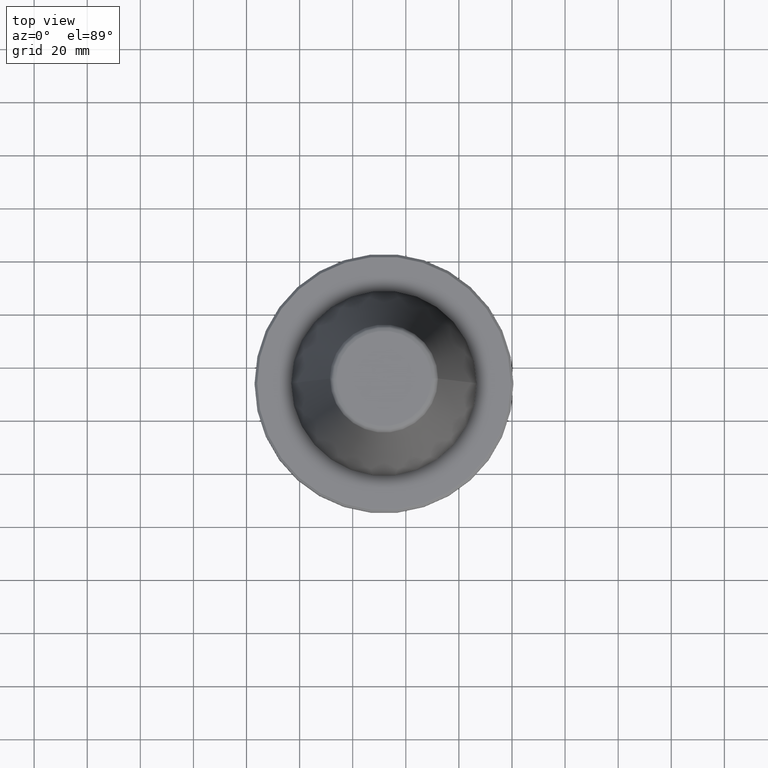
[diagram: clean part render]
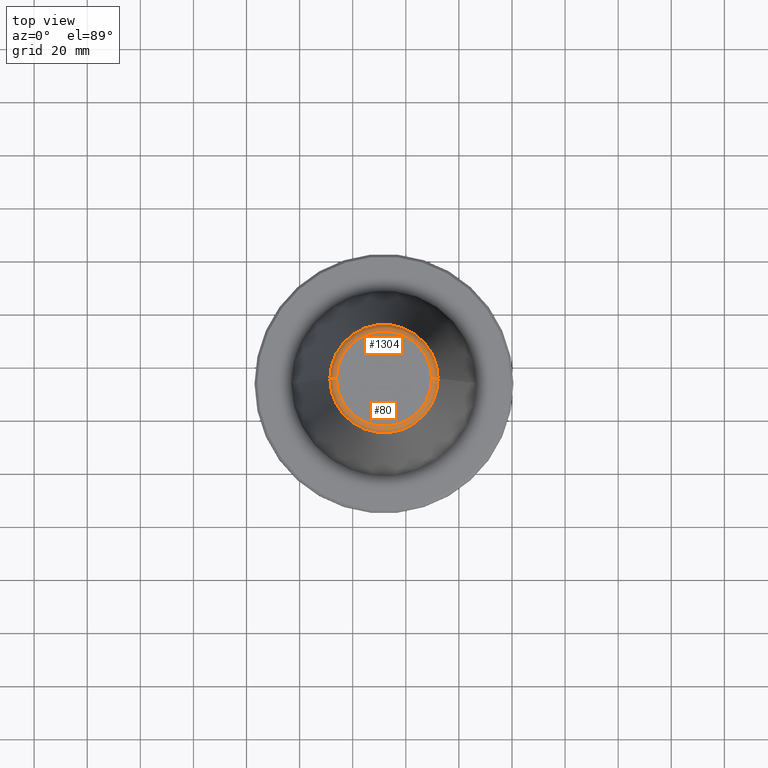
[diagram: same view with one multi-face feature highlighted, each face labeled with its STEP entity id]
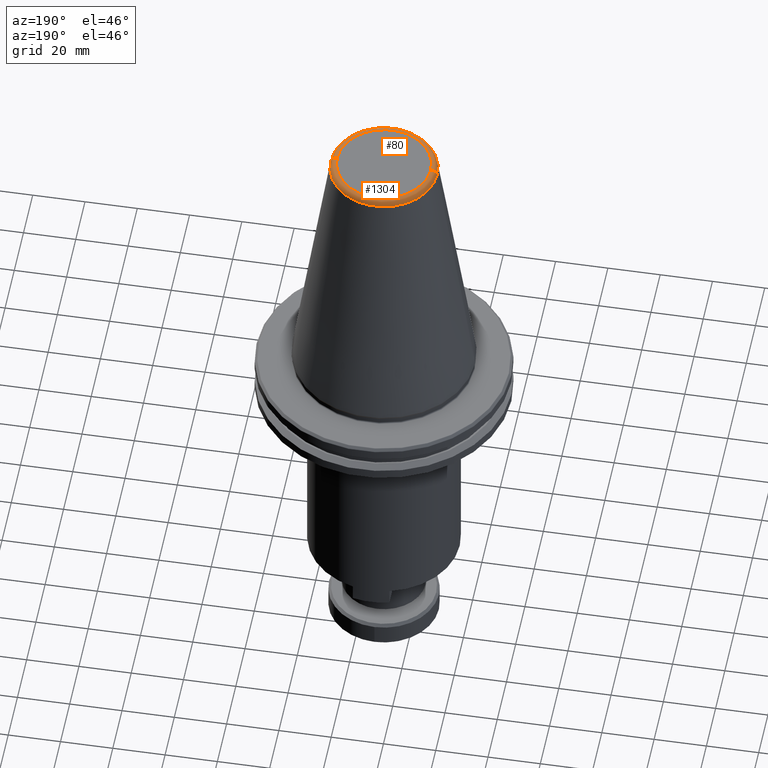
[diagram: same view with one multi-face feature highlighted, each face labeled with its STEP entity id]
A machine part, top view. The highlighted faces form ONE feature: a constant-radius fillet chain: 2 tangent blend faces with common blend radius 2.5 mm. The faces share edges in the B-rep.
A second angle (auxiliary view) of the same feature is appended — it is thin or edge-on in the first view.
Their STEP definitions:
[1] entity #80 (Torus):
#74 = CARTESIAN_POINT ( 'NONE',  ( 91.78900745422477300, 111.8872747687010000, 197.6102733462803900 ) ) ;
#80 = ADVANCED_FACE ( 'NONE', ( #599 ), #625, .T. ) ;
#137 = CIRCLE ( 'NONE', #677, 2.500000001019159000 ) ;
#186 = VERTEX_POINT ( 'NONE', #206 ) ;
#206 = CARTESIAN_POINT ( 'NONE',  ( 71.39071532422478600, 111.8872747687010000, 197.6102733462803900 ) ) ;
#231 = DIRECTION ( 'NONE',  ( 1.000000000000000000, 0.0000000000000000000, 0.0000000000000000000 ) ) ;
#266 = AXIS2_PLACEMENT_3D ( 'NONE', #399, #705, #2025 ) ;
#308 = AXIS2_PLACEMENT_3D ( 'NONE', #535, #1935, #1507 ) ;
#329 = CIRCLE ( 'NONE', #308, 2.500000001019159000 ) ;
#334 = CIRCLE ( 'NONE', #592, 20.39829212999999400 ) ;
#339 = EDGE_CURVE ( 'NONE', #2079, #817, #426, .T. ) ;
#363 = CARTESIAN_POINT ( 'NONE',  ( 73.86443870282634800, 111.8872747687010000, 199.7495027765116900 ) ) ;
#399 = CARTESIAN_POINT ( 'NONE',  ( 91.78900745422477300, 111.8872747687010000, 197.2495027778508100 ) ) ;
#407 = CARTESIAN_POINT ( 'NONE',  ( 112.1872995842247700, 111.8872747687010000, 197.6102733462803900 ) ) ;
#426 = CIRCLE ( 'NONE', #931, 17.92456875139843200 ) ;
#482 = EDGE_CURVE ( 'NONE', #186, #2079, #329, .T. ) ;
#491 = EDGE_CURVE ( 'NONE', #186, #1187, #334, .T. ) ;
#535 = CARTESIAN_POINT ( 'NONE',  ( 73.86454729085123500, 111.8872747687010000, 197.2495027778508100 ) ) ;
#557 = DIRECTION ( 'NONE',  ( -0.0000000000000000000, -0.0000000000000000000, 1.000000000000000000 ) ) ;
#592 = AXIS2_PLACEMENT_3D ( 'NONE', #74, #557, #231 ) ;
#599 = FACE_OUTER_BOUND ( 'NONE', #1417, .T. ) ;
#625 = TOROIDAL_SURFACE ( 'NONE', #266, 17.92446016337354600, 2.500000001019154500 ) ;
#677 = AXIS2_PLACEMENT_3D ( 'NONE', #1234, #1784, #2129 ) ;
#705 = DIRECTION ( 'NONE',  ( -0.0000000000000000000, -0.0000000000000000000, 1.000000000000000000 ) ) ;
#766 = EDGE_CURVE ( 'NONE', #1187, #817, #137, .T. ) ;
#817 = VERTEX_POINT ( 'NONE', #1941 ) ;
#931 = AXIS2_PLACEMENT_3D ( 'NONE', #1835, #1895, #1770 ) ;
#1135 = ORIENTED_EDGE ( 'NONE', *, *, #339, .F. ) ;
#1187 = VERTEX_POINT ( 'NONE', #407 ) ;
#1234 = CARTESIAN_POINT ( 'NONE',  ( 109.7134676175983100, 111.8872747687010000, 197.2495027778508100 ) ) ;
#1358 = ORIENTED_EDGE ( 'NONE', *, *, #491, .T. ) ;
#1417 = EDGE_LOOP ( 'NONE', ( #1438, #1358, #1926, #1135 ) ) ;
#1438 = ORIENTED_EDGE ( 'NONE', *, *, #482, .F. ) ;
#1507 = DIRECTION ( 'NONE',  ( -1.000000000000000000, 0.0000000000000000000, 0.0000000000000000000 ) ) ;
#1770 = DIRECTION ( 'NONE',  ( 1.000000000000000000, 0.0000000000000000000, 0.0000000000000000000 ) ) ;
#1784 = DIRECTION ( 'NONE',  ( 0.0000000000000000000, -1.000000000000000000, 0.0000000000000000000 ) ) ;
#1835 = CARTESIAN_POINT ( 'NONE',  ( 91.78900745422477300, 111.8872747687010000, 199.7495027765116900 ) ) ;
#1895 = DIRECTION ( 'NONE',  ( -0.0000000000000000000, -0.0000000000000000000, 1.000000000000000000 ) ) ;
#1926 = ORIENTED_EDGE ( 'NONE', *, *, #766, .T. ) ;
#1935 = DIRECTION ( 'NONE',  ( 1.224646799147353200E-016, 1.000000000000000000, 0.0000000000000000000 ) ) ;
#1941 = CARTESIAN_POINT ( 'NONE',  ( 109.7135762056232100, 111.8872747687010000, 199.7495027765116900 ) ) ;
#2025 = DIRECTION ( 'NONE',  ( 1.000000000000000000, 0.0000000000000000000, 0.0000000000000000000 ) ) ;
#2079 = VERTEX_POINT ( 'NONE', #363 ) ;
#2129 = DIRECTION ( 'NONE',  ( 0.0000000000000000000, 0.0000000000000000000, -1.000000000000000000 ) ) ;
[2] entity #1304 (Torus):
#4 = DIRECTION ( 'NONE',  ( -0.0000000000000000000, -0.0000000000000000000, 1.000000000000000000 ) ) ;
#82 = AXIS2_PLACEMENT_3D ( 'NONE', #467, #4, #1376 ) ;
#137 = CIRCLE ( 'NONE', #677, 2.500000001019159000 ) ;
#178 = EDGE_LOOP ( 'NONE', ( #1437, #697, #2522, #1420 ) ) ;
#186 = VERTEX_POINT ( 'NONE', #206 ) ;
#206 = CARTESIAN_POINT ( 'NONE',  ( 71.39071532422478600, 111.8872747687010000, 197.6102733462803900 ) ) ;
#308 = AXIS2_PLACEMENT_3D ( 'NONE', #535, #1935, #1507 ) ;
#329 = CIRCLE ( 'NONE', #308, 2.500000001019159000 ) ;
#363 = CARTESIAN_POINT ( 'NONE',  ( 73.86443870282634800, 111.8872747687010000, 199.7495027765116900 ) ) ;
#407 = CARTESIAN_POINT ( 'NONE',  ( 112.1872995842247700, 111.8872747687010000, 197.6102733462803900 ) ) ;
#467 = CARTESIAN_POINT ( 'NONE',  ( 91.78900745422477300, 111.8872747687010000, 197.2495027778508100 ) ) ;
#482 = EDGE_CURVE ( 'NONE', #186, #2079, #329, .T. ) ;
#535 = CARTESIAN_POINT ( 'NONE',  ( 73.86454729085123500, 111.8872747687010000, 197.2495027778508100 ) ) ;
#677 = AXIS2_PLACEMENT_3D ( 'NONE', #1234, #1784, #2129 ) ;
#697 = ORIENTED_EDGE ( 'NONE', *, *, #482, .T. ) ;
#766 = EDGE_CURVE ( 'NONE', #1187, #817, #137, .T. ) ;
#817 = VERTEX_POINT ( 'NONE', #1941 ) ;
#1187 = VERTEX_POINT ( 'NONE', #407 ) ;
#1234 = CARTESIAN_POINT ( 'NONE',  ( 109.7134676175983100, 111.8872747687010000, 197.2495027778508100 ) ) ;
#1289 = EDGE_CURVE ( 'NONE', #1187, #186, #2312, .T. ) ;
#1304 = ADVANCED_FACE ( 'NONE', ( #2314 ), #2310, .T. ) ;
#1376 = DIRECTION ( 'NONE',  ( 1.000000000000000000, 0.0000000000000000000, 0.0000000000000000000 ) ) ;
#1420 = ORIENTED_EDGE ( 'NONE', *, *, #766, .F. ) ;
#1437 = ORIENTED_EDGE ( 'NONE', *, *, #1289, .T. ) ;
#1507 = DIRECTION ( 'NONE',  ( -1.000000000000000000, 0.0000000000000000000, 0.0000000000000000000 ) ) ;
#1535 = CIRCLE ( 'NONE', #2197, 17.92456875139843200 ) ;
#1784 = DIRECTION ( 'NONE',  ( 0.0000000000000000000, -1.000000000000000000, 0.0000000000000000000 ) ) ;
#1840 = DIRECTION ( 'NONE',  ( -0.0000000000000000000, -0.0000000000000000000, 1.000000000000000000 ) ) ;
#1847 = DIRECTION ( 'NONE',  ( 1.000000000000000000, 0.0000000000000000000, 0.0000000000000000000 ) ) ;
#1935 = DIRECTION ( 'NONE',  ( 1.224646799147353200E-016, 1.000000000000000000, 0.0000000000000000000 ) ) ;
#1941 = CARTESIAN_POINT ( 'NONE',  ( 109.7135762056232100, 111.8872747687010000, 199.7495027765116900 ) ) ;
#1954 = CARTESIAN_POINT ( 'NONE',  ( 91.78900745422477300, 111.8872747687010000, 197.6102733462803900 ) ) ;
#1984 = EDGE_CURVE ( 'NONE', #817, #2079, #1535, .T. ) ;
#2035 = CARTESIAN_POINT ( 'NONE',  ( 91.78900745422477300, 111.8872747687010000, 199.7495027765116900 ) ) ;
#2079 = VERTEX_POINT ( 'NONE', #363 ) ;
#2080 = AXIS2_PLACEMENT_3D ( 'NONE', #1954, #2605, #2635 ) ;
#2129 = DIRECTION ( 'NONE',  ( 0.0000000000000000000, 0.0000000000000000000, -1.000000000000000000 ) ) ;
#2197 = AXIS2_PLACEMENT_3D ( 'NONE', #2035, #1840, #1847 ) ;
#2310 = TOROIDAL_SURFACE ( 'NONE', #82, 17.92446016337354600, 2.500000001019154500 ) ;
#2312 = CIRCLE ( 'NONE', #2080, 20.39829212999999400 ) ;
#2314 = FACE_OUTER_BOUND ( 'NONE', #178, .T. ) ;
#2522 = ORIENTED_EDGE ( 'NONE', *, *, #1984, .F. ) ;
#2605 = DIRECTION ( 'NONE',  ( -0.0000000000000000000, -0.0000000000000000000, 1.000000000000000000 ) ) ;
#2635 = DIRECTION ( 'NONE',  ( 1.000000000000000000, 0.0000000000000000000, 0.0000000000000000000 ) ) ;